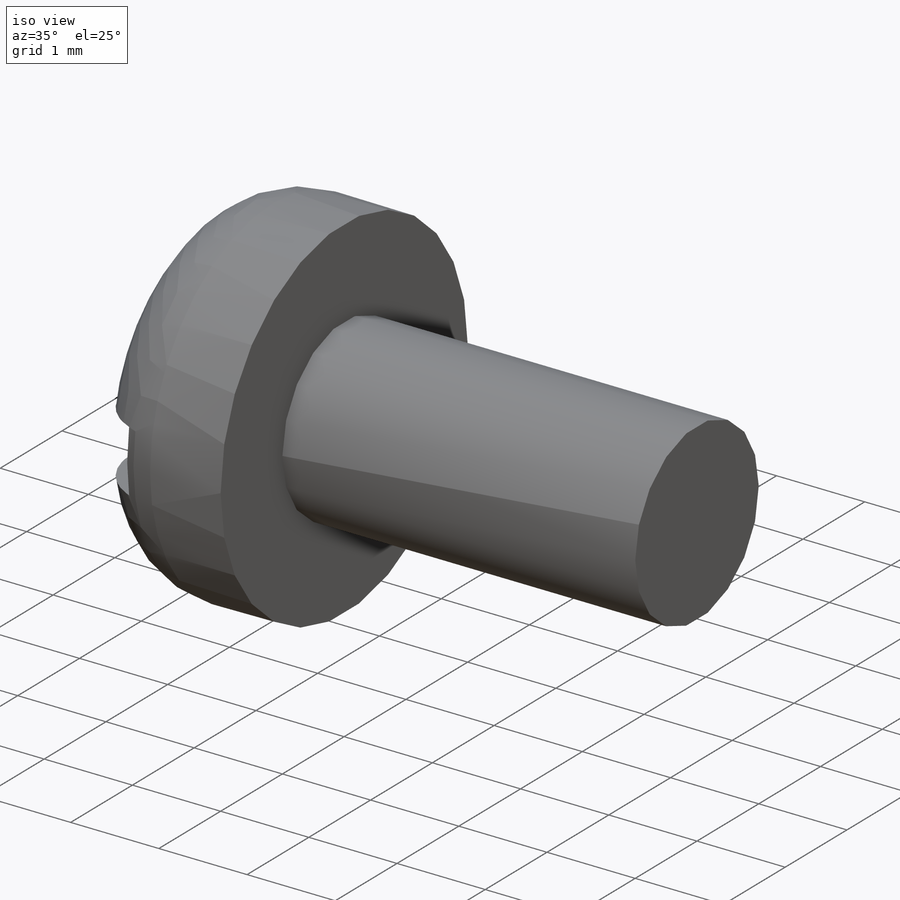
[diagram: iso view]
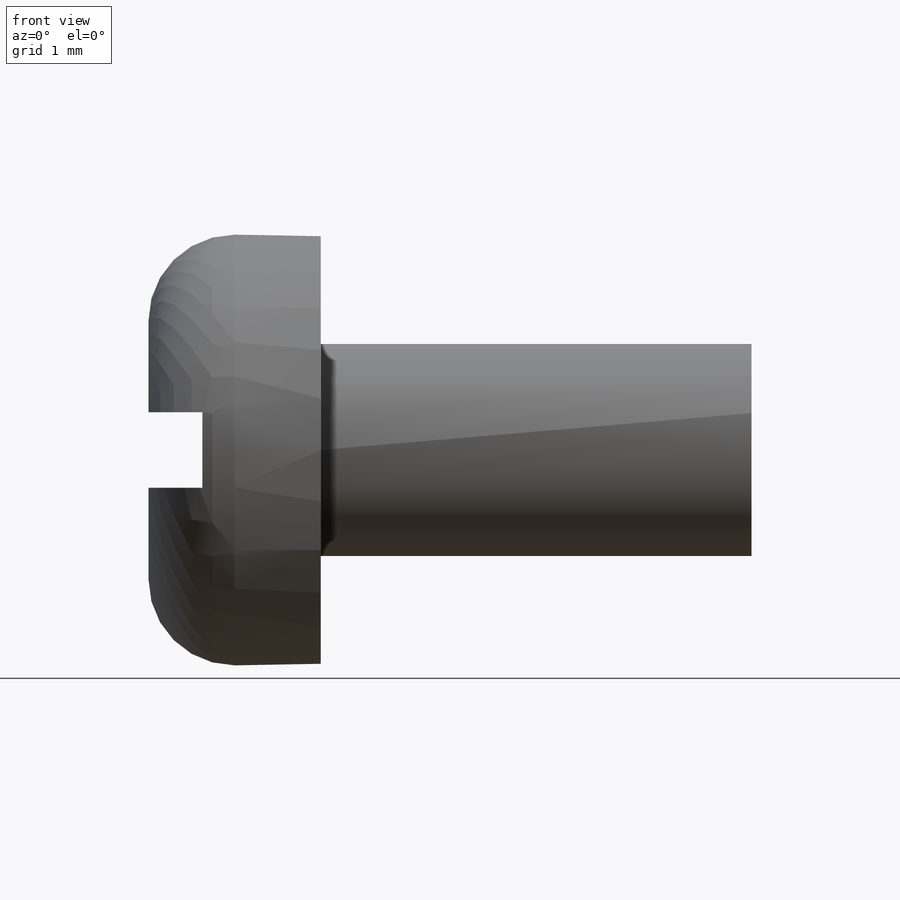
[diagram: front view]
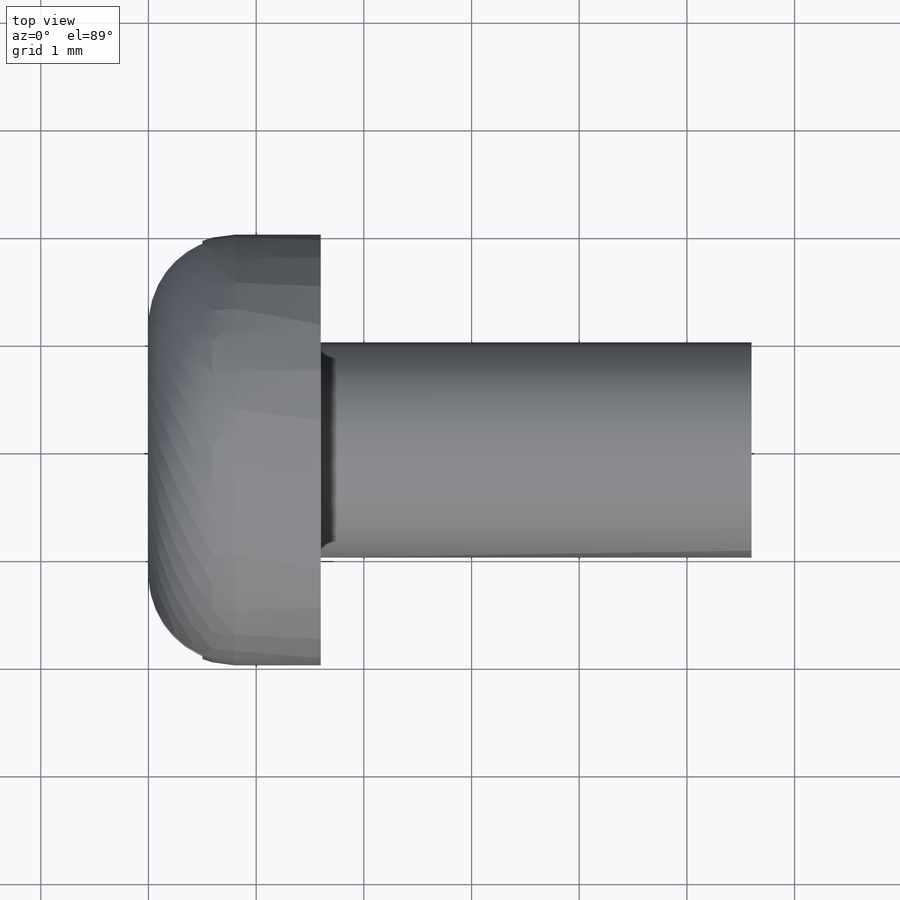
[diagram: top view]
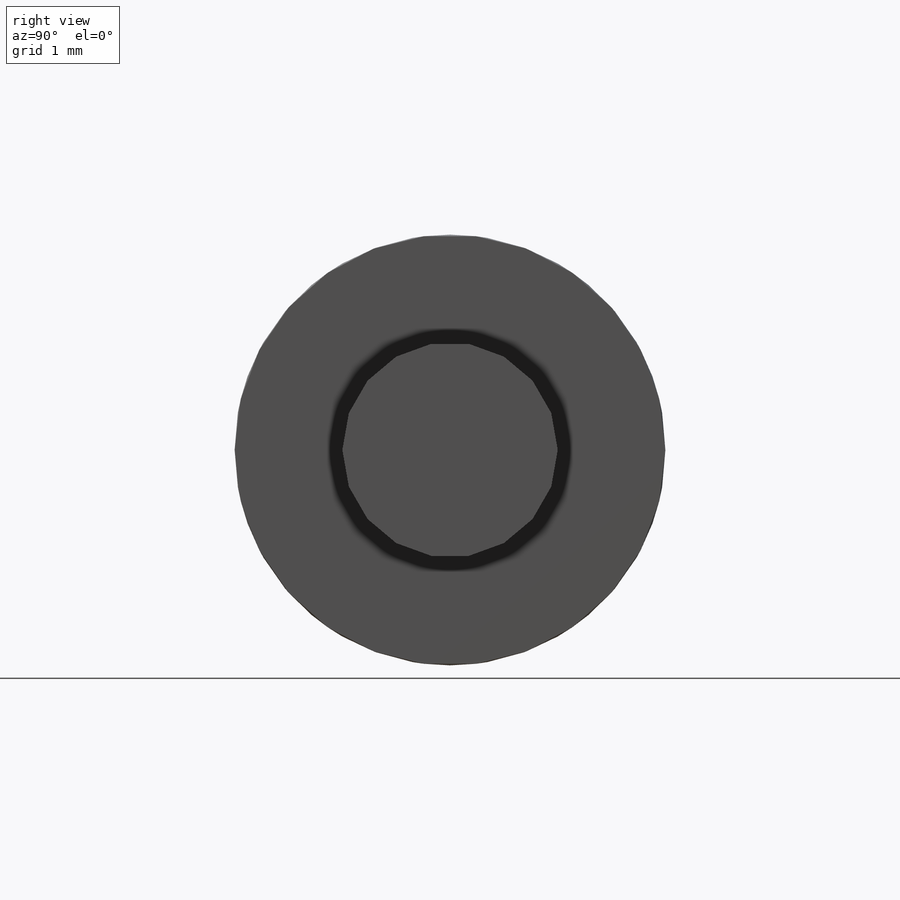
[diagram: right view]
SOLIDWORKS PART (.sldprt)
format: sldprt  version: not decoded by parser v0  size: 226,304 bytes
history: native  units: mm
features: plane x3, sketch x3, material x1, revolve x1, thread x1, cut_extrude x1, cut_revolve x1, pattern_linear x1 (+10 scaffold rows collapsed; 1 parser-record rows omitted)
feature tree (23):
  scaffold x10  (default folders/planes/origin — collapsed)
  material  "Material <not specified>"
  plane  "Plane1"
  plane  "Plane2"
  plane  "Plane3"
  parser-record x1  (decoder bookkeeping rows leaked as tree rows — omitted from the tree; the rows remain in map.json)
  revolve  "Base-Revolve"  [1 undecoded]
  sketch  "BodySke"  dims[c1.Head_fillet_rad=0.8mm c1.D1=~7.099516mm c1.Head_ang=85.0deg c1.Oval_ht=2.3876mm c1.Head_ht=6.1976mm c1.Diameter=2.0mm c1.Length=76.2mm c1.Head_dia=20.0152mm c2.Head_dia=15.3924mm c2.Head_ht=8.509mm c2.Length=4.0mm c2.Head_side_ht=6.1722mm c3.Head_ht=1.6mm c3.Head_dia=4.0mm c3.Advance=0.4mm c3.Thread_nom=4.0mm c3.Thread_lim=36.5125mm]
  thread  "ThreadCosmetic"  Diameter=3.6mm Thread_length=3.6mm Thread_minor=1.548mm  [1 undecoded]
  sketch  "Sketch2"  dims[D1=4.0mm Slot_width=0.7mm D2=2.0mm D3=0.35mm]
  cut_extrude  "Slot"  Depth=0.5mm Slot_depth=0.5mm
  sketch  "ThdSchSke"  dims[c1.Thread_minor=~1.03886mm c1.Diameter=~1.413535mm c1.Start=~0.988134mm c1.D4=~4.446753mm c1.Vee=60.0deg c2.Thread_minor=~1.03886mm c2.Start=~2.540025mm c2.D1=~0.108159mm c2.D2=~0.108159mm c3.D1=~0.216319mm c3.SideAngle=55.0deg c3.D2=~0.216319mm c3.VeeAngle=70.0deg c3.Thread_minor=1.548mm c3.Overcut=2.5mm c3.Diameter=2.0mm c3.D6=~8.326268mm c4.D1=~8.326268mm c5.D1=90.0deg c5.Start=11.1125mm c6.Start=~44.450025mm c7.Start=2.0mm]
  cut_revolve  "ThreadSchematic"  Angle=360deg
  pattern_linear  "ThdSchPat"  Count1=10 Count2=1 Spacing1=0.4mm Spacing2=50mm Num_threads=10 Advance=0.4mm ConfigurationName=0mm CopiedFlag=0 PartNumberID=0mm
decode coverage: 7 of 8 modeling features carry decoded parameters
note: ~ marks probable driven/reference dimensions
note: 2 parameter values undecoded
note: suppression state not decoded; provenance and decode notes live in map.json
